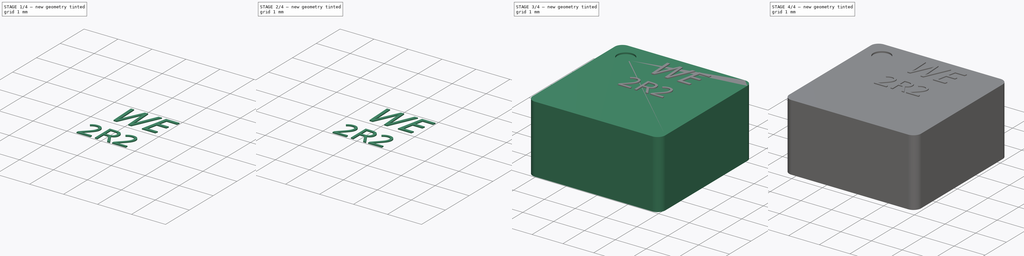
[diagram: build sequence overview — one tinted view per stage of 4, left to right]
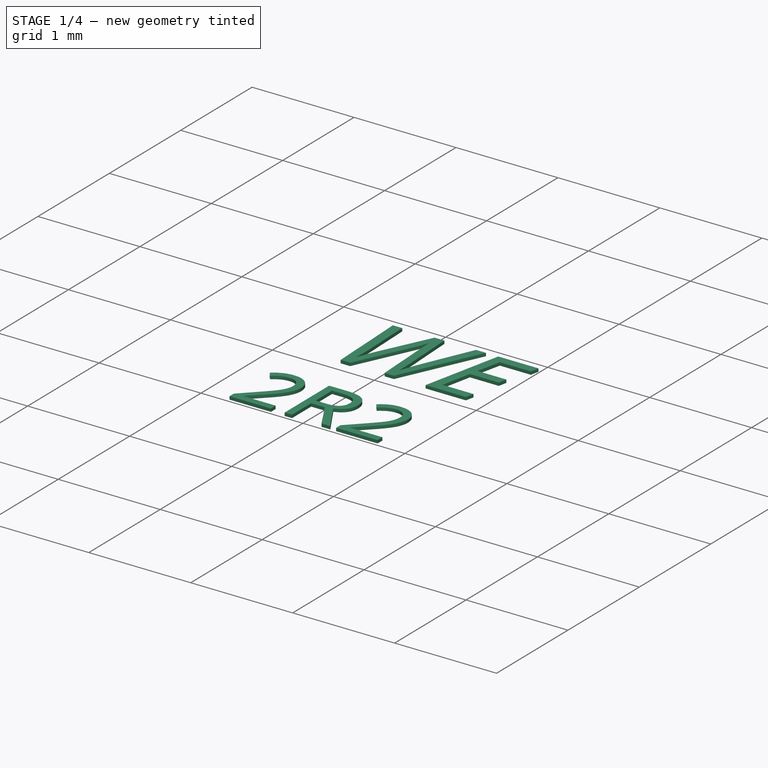
[diagram: stage 1 of 4 — iso view after this stage's code; geometry added in this stage tinted green]
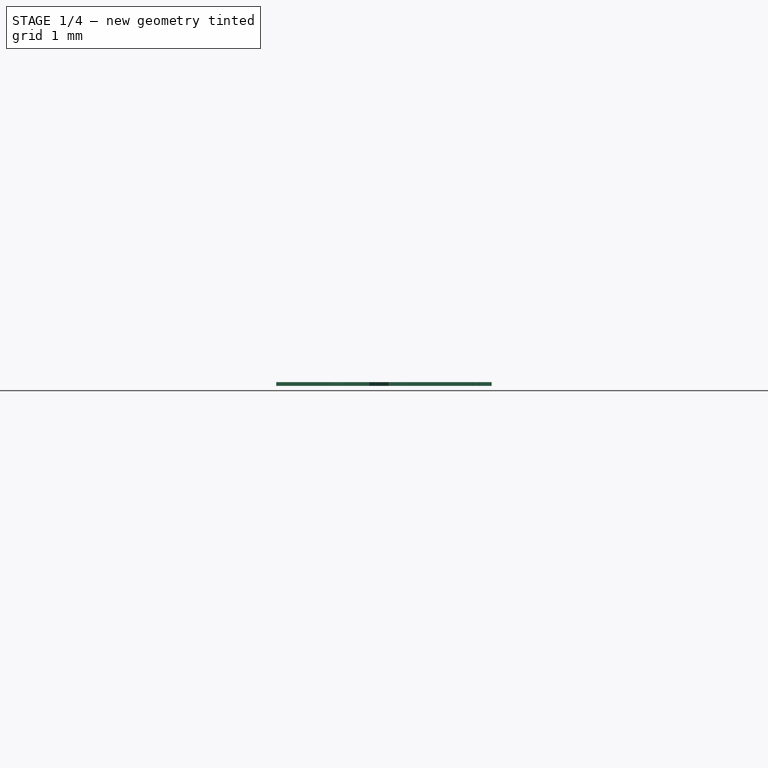
[diagram: stage 1 of 4 — front view after this stage's code; geometry added in this stage tinted green]
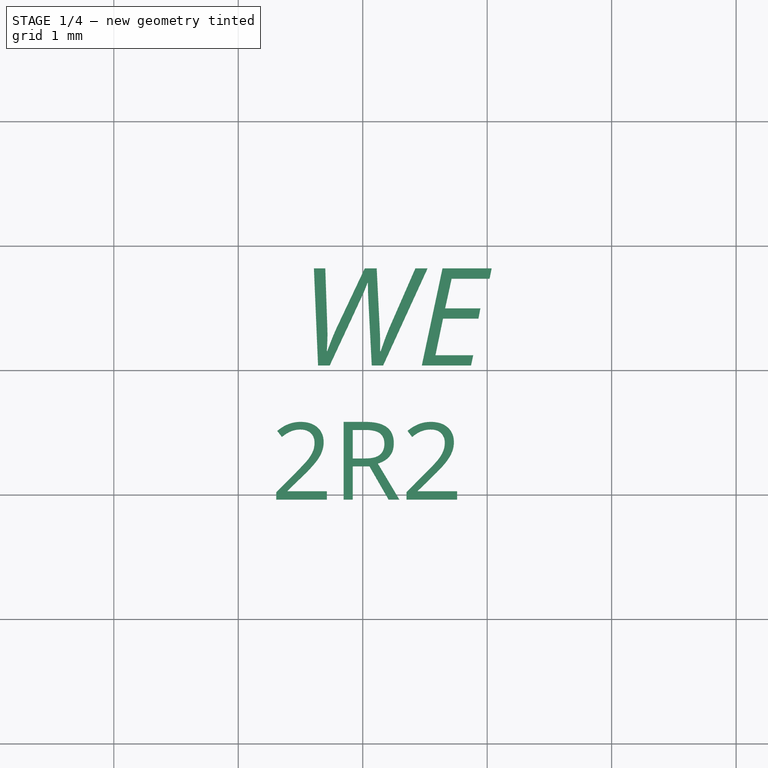
[diagram: stage 1 of 4 — top view after this stage's code; geometry added in this stage tinted green]
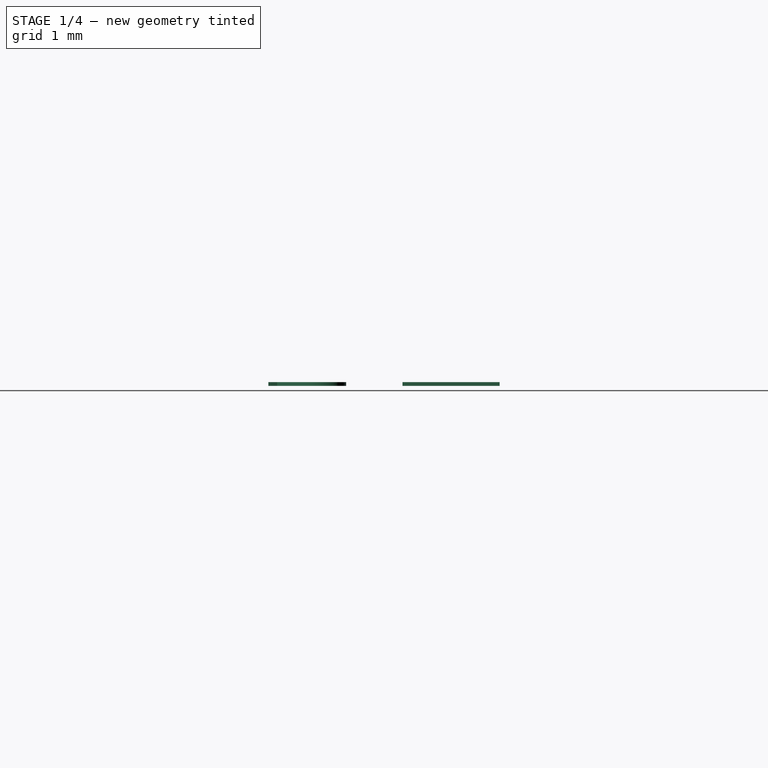
[diagram: stage 1 of 4 — right view after this stage's code; geometry added in this stage tinted green]
FCSTD DOCUMENT  (FreeCAD 0.16R6703 (Git))
Label: L4040
License: All rights reserved
LicenseURL: http://en.wikipedia.org/wiki/All_rights_reserved
objects: Sketcher::SketchObject×3, Part::FeaturePython×3, PartDesign::Pad×2, Part::Part2DObjectPython×2, Part::Extrusion×2, PartDesign::Pocket×1, Part::MultiFuse×1, App::DocumentObjectGroup×1
note: 17 computed .brp shape members not serialized (recipe doc carries the construction recipe); baked Part::Feature solids carry a one-line shape summary decoded from their .brp

FEATURE [Part::Part2DObjectPython] ShapeString  # Draft 2D object (typed FeaturePython)
  FontFile = <userpath>/develop/icezum/src-kicad/packages3d/develop/Open_Sans/OpenSans-Italic.ttf
  Placement = pos=(-0.99574,0.19247,3.1) rot=(0,0,1;0rad)
  Size = 1
  String = WE
  Tracking = 0
FEATURE [Part::Extrusion] Extrude  label="Text-1"
  Base = -> ShapeString
  Dir = (0,0,0.03)
  Placement = pos=(0.483215,0.848093,0) rot=(0,0,1;0rad)
  Solid = true
FEATURE [Part::Part2DObjectPython] ShapeString001  # Draft 2D object (typed FeaturePython)
  FontFile = <userpath>/develop/icezum/src-kicad/packages3d/develop/Open_Sans/OpenSans-Regular.ttf
  Placement = pos=(-0.979148,-0.0208523,3.1) rot=(0,0,1;0rad)
  Size = 0.8
  String = 2R2
  Tracking = 0
FEATURE [Part::Extrusion] Extrude001  label="Text-2"
  Base = -> ShapeString001
  Dir = (0,0,0.03)
  Placement = pos=(0.242218,-0.0161481,0) rot=(0,0,1;0rad)
  Solid = true
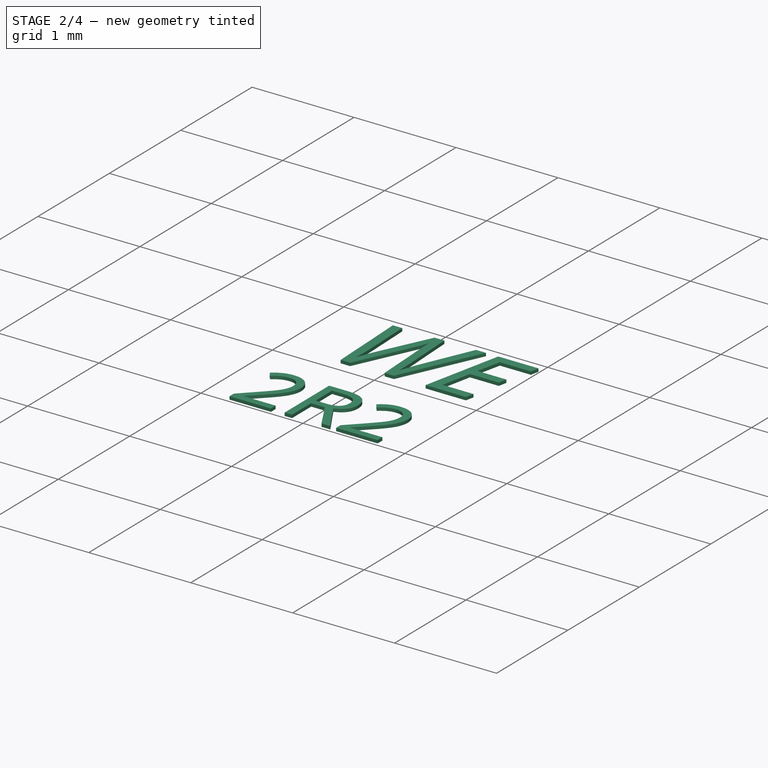
[diagram: stage 2 of 4 — iso view after this stage's code; geometry added in this stage tinted green]
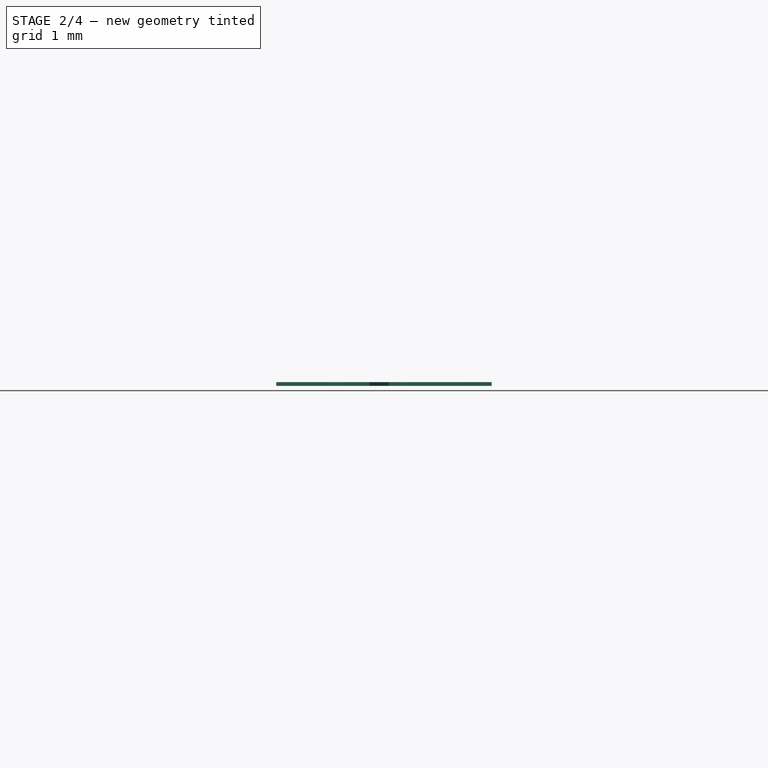
[diagram: stage 2 of 4 — front view after this stage's code; geometry added in this stage tinted green]
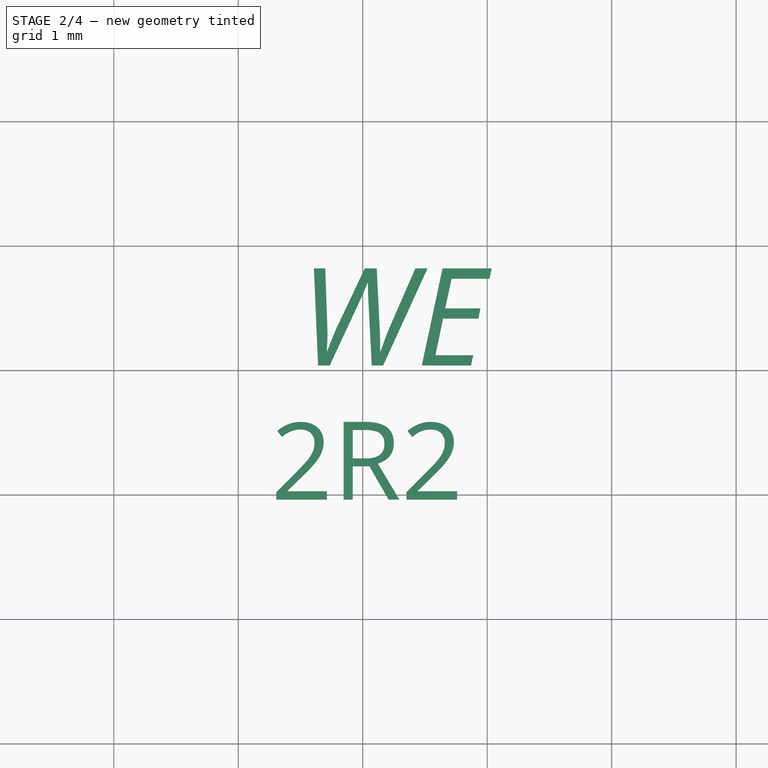
[diagram: stage 2 of 4 — top view after this stage's code; geometry added in this stage tinted green]
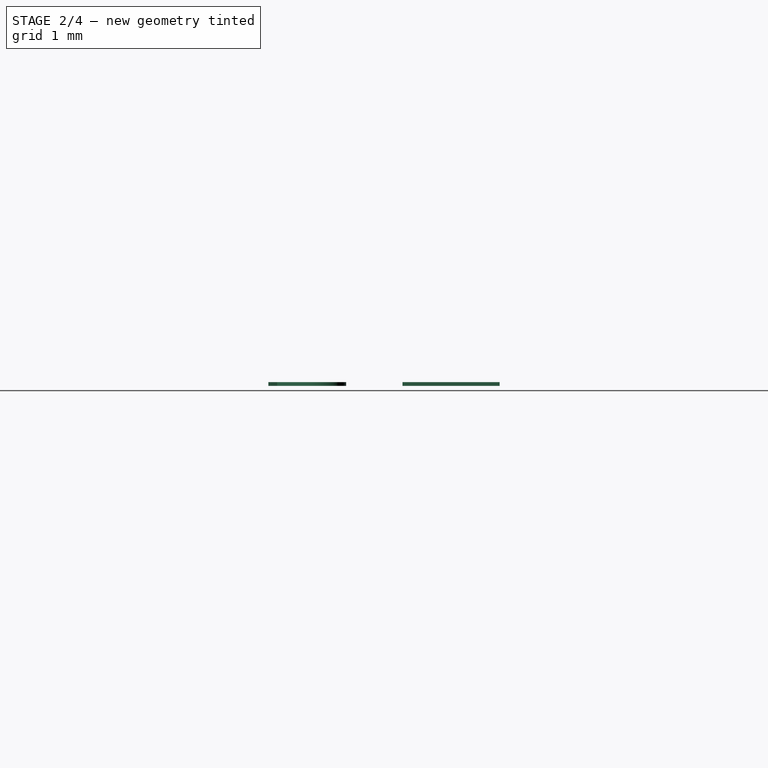
[diagram: stage 2 of 4 — right view after this stage's code; geometry added in this stage tinted green]
FEATURE [Part::MultiFuse] Fusion  label="Text-src"
  Shapes = -> [Extrude,Extrude001]
FEATURE [Part::FeaturePython] Clone002  label="Text"  # Draft clone (typed FeaturePython)
  Objects = -> [Fusion]
  Placement = pos=(0,0,-0.8) rot=(0,0,1;0rad)
  Scale = (1,1,1)
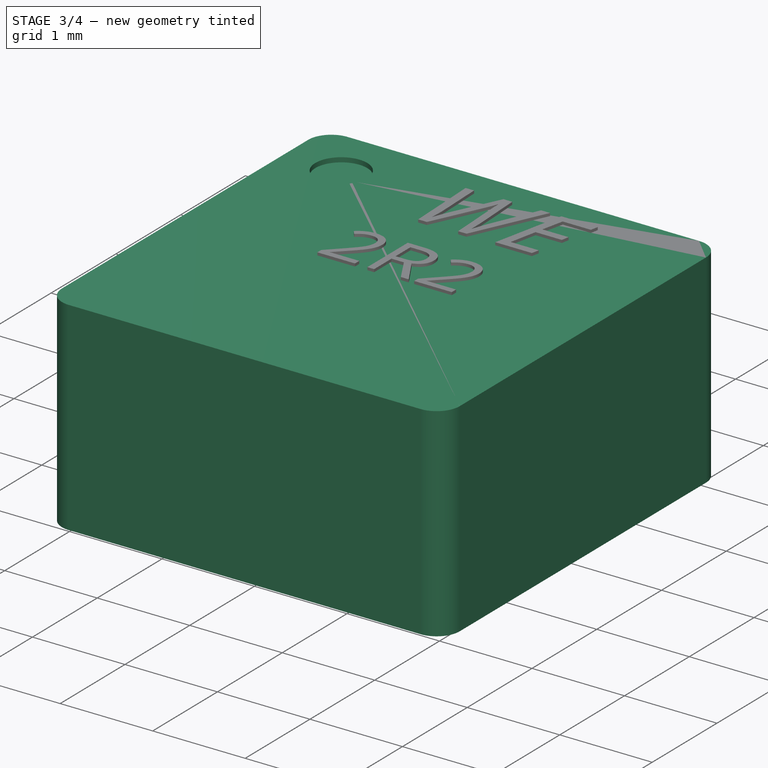
[diagram: stage 3 of 4 — iso view after this stage's code; geometry added in this stage tinted green]
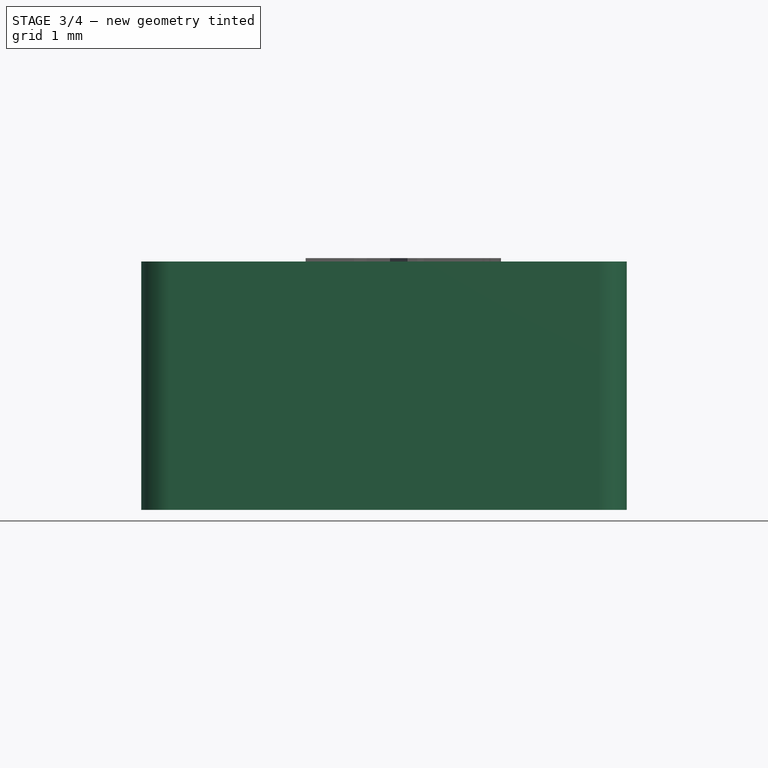
[diagram: stage 3 of 4 — front view after this stage's code; geometry added in this stage tinted green]
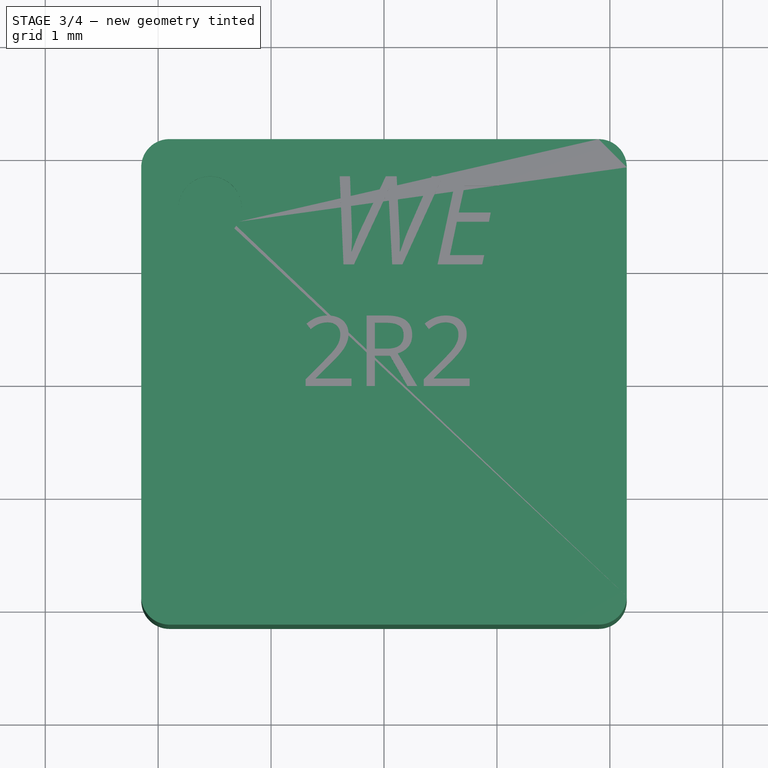
[diagram: stage 3 of 4 — top view after this stage's code; geometry added in this stage tinted green]
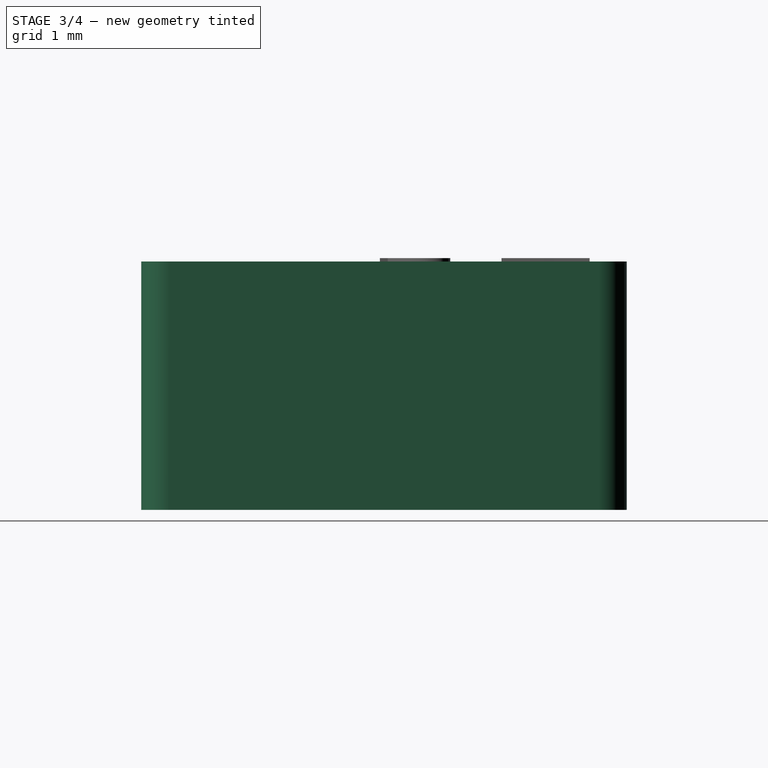
[diagram: stage 3 of 4 — right view after this stage's code; geometry added in this stage tinted green]
FEATURE [Sketcher::SketchObject] Sketch  label="body-sketch"
  Placement = pos=(1.56732e-07,-2.2571e-08,0.0999997) rot=(0,0,1;0rad)
  sketch-geometry (8):
    g0: LineSegment StartX=-1.9 StartY=2.15 StartZ=0 EndX=1.9 EndY=2.15 EndZ=0
    g1: LineSegment StartX=2.15 StartY=1.9 StartZ=0 EndX=2.15 EndY=-1.9 EndZ=0
    g2: LineSegment StartX=1.9 StartY=-2.15 StartZ=0 EndX=-1.9 EndY=-2.15 EndZ=0
    g3: LineSegment StartX=-2.15 StartY=-1.9 StartZ=0 EndX=-2.15 EndY=1.9 EndZ=0
    g4: ArcOfCircle CenterX=-1.9 CenterY=1.9 CenterZ=0 NormalX=0 NormalY=0 NormalZ=1 Radius=0.25 StartAngle=1.5708 EndAngle=3.14159
    g5: ArcOfCircle CenterX=1.9 CenterY=1.9 CenterZ=0 NormalX=0 NormalY=0 NormalZ=1 Radius=0.25 StartAngle=0 EndAngle=1.5708
    g6: ArcOfCircle CenterX=1.9 CenterY=-1.9 CenterZ=0 NormalX=0 NormalY=0 NormalZ=1 Radius=0.25 StartAngle=4.71239 EndAngle=6.28319
    g7: ArcOfCircle CenterX=-1.9 CenterY=-1.9 CenterZ=0 NormalX=0 NormalY=0 NormalZ=1 Radius=0.25 StartAngle=3.14159 EndAngle=4.71239
  constraints (18):
    c: Horizontal(g0)
    c: Horizontal(g2)
    c: Vertical(g1)
    c: Vertical(g3)
    c: Tangent(g0,g4) = 1.5708
    c: Tangent(g3,g4) = 1.5708
    c: Tangent(g0,g5) = 1.5708
    c: Tangent(g1,g5) = 1.5708
    c: Tangent(g1,g6) = 1.5708
    c: Tangent(g2,g6) = 1.5708
    c: Tangent(g2,g7) = 1.5708
    c: Tangent(g3,g7) = 1.5708
    c: DistanceY(g2,g0) = 4.3
    c: DistanceX(g3,g1) = 4.3
    c: Symmetric(g4,g6,g-1)
    c: Symmetric(g7,g5,g-1)
    c: Equal(g4,g5)
    c: Radius(g5) = 0.25
FEATURE [PartDesign::Pad] Pad  label="body-src-1"
  Length = 2.2
  Length2 = 100
  Placement = pos=(1.56732e-07,-2.2571e-08,0.0999997) rot=(0,0,1;0rad)
  Sketch = -> Sketch
  Type = 0
FEATURE [Sketcher::SketchObject] Sketch002  label="mark-sketch"
  Placement = pos=(1.56732e-07,-2.2571e-08,2.3) rot=(0,0,1;0rad)
  Support = -> Pad [Face10]
  sketch-geometry (1):
    g0: Circle CenterX=-1.54 CenterY=1.54 CenterZ=0 NormalX=0 NormalY=0 NormalZ=1 Radius=0.28
  constraints (3):
    c: DistanceY(g-1,g0) = 1.54
    c: DistanceX(g0,g-1) = 1.54
    c: Radius(g0) = 0.28
FEATURE [PartDesign::Pocket] Pocket  label="body-mark"
  Length = 0.05
  Placement = pos=(1.56732e-07,-2.2571e-08,0.0999997) rot=(0,0,1;0rad)
  Sketch = -> Sketch002
  Type = 0
FEATURE [Part::FeaturePython] Clone001  label="body"  # Draft clone (typed FeaturePython)
  Objects = -> [Pocket]
  Placement = pos=(1.56732e-07,-2.2571e-08,0.0999997) rot=(0,0,1;0rad)
  Scale = (1,1,1)
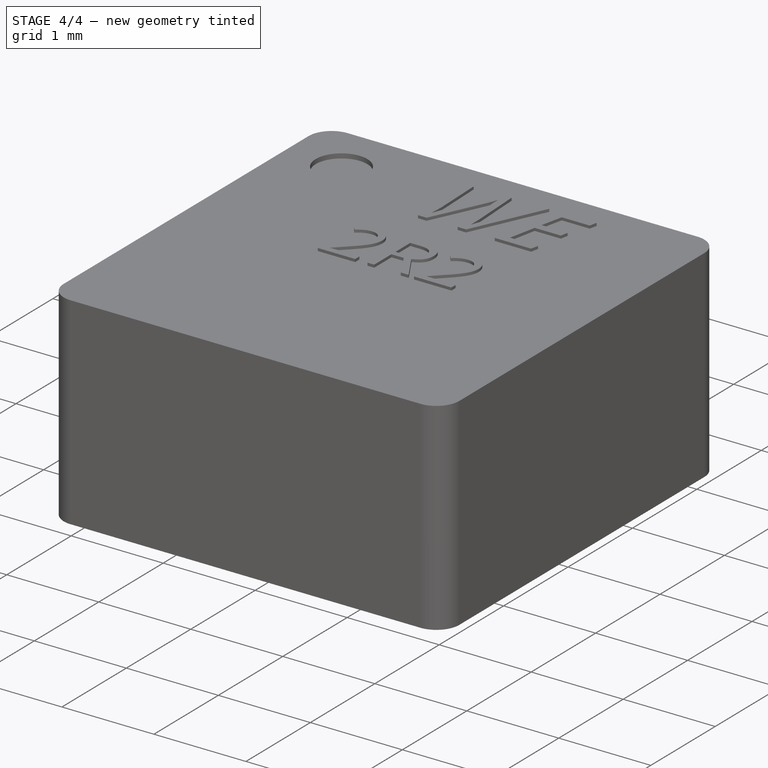
[diagram: stage 4 of 4 — iso view after this stage's code; geometry added in this stage tinted green]
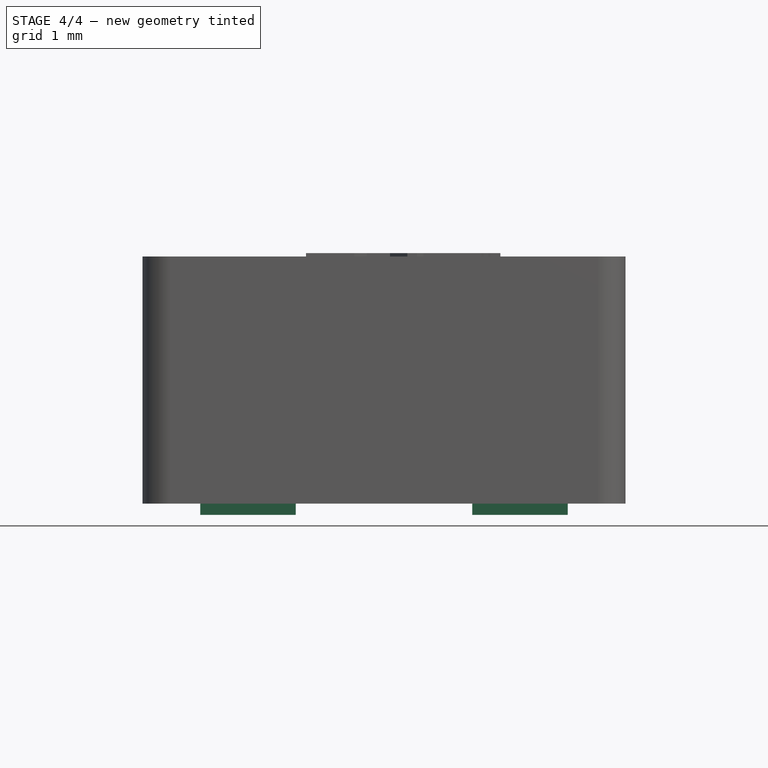
[diagram: stage 4 of 4 — front view after this stage's code; geometry added in this stage tinted green]
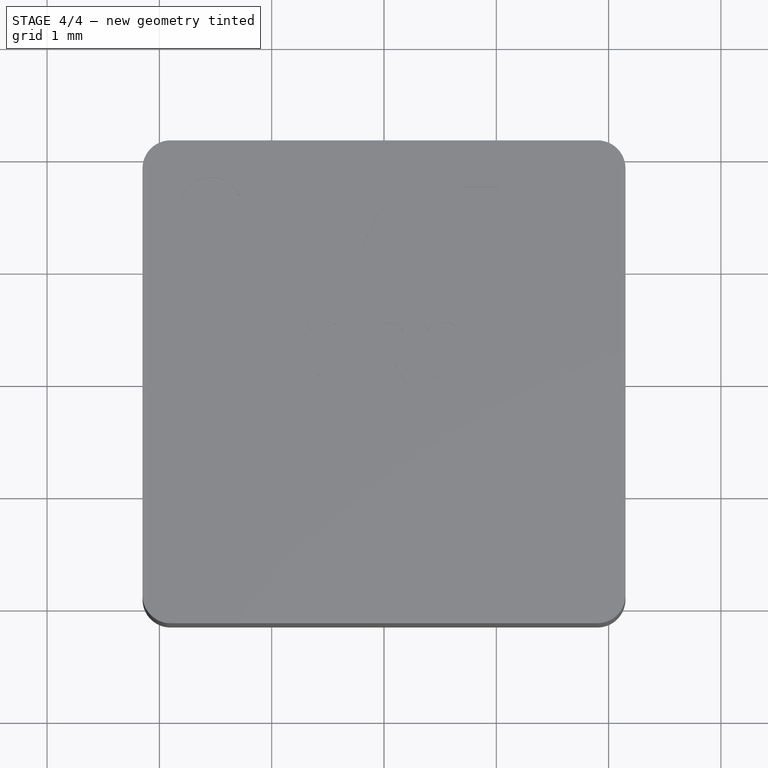
[diagram: stage 4 of 4 — top view after this stage's code; geometry added in this stage tinted green]
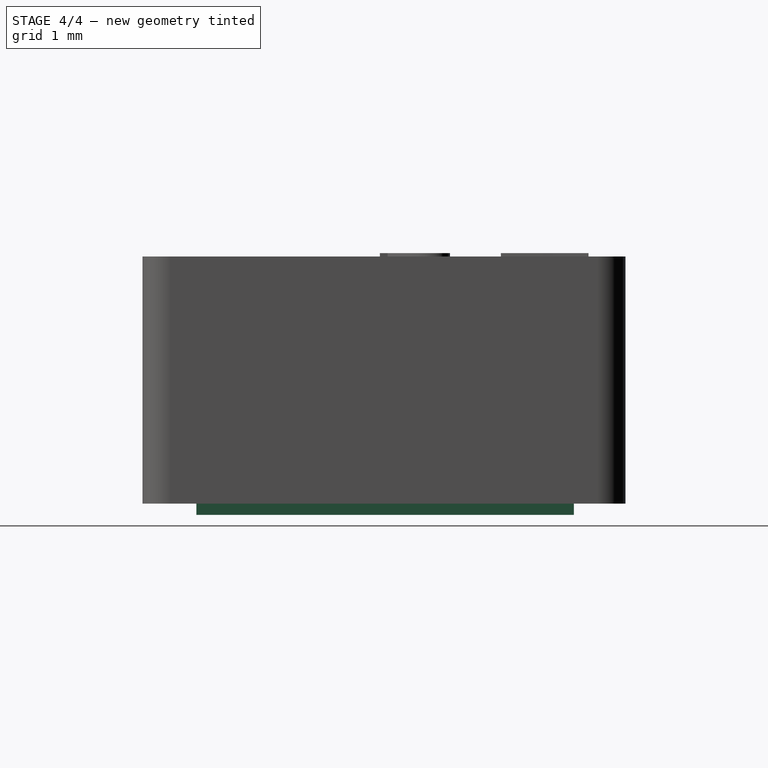
[diagram: stage 4 of 4 — right view after this stage's code; geometry added in this stage tinted green]
FEATURE [Sketcher::SketchObject] Sketch001  label="pads-sketch"
  sketch-geometry (8):
    g0: LineSegment StartX=-1.67 StartY=1.636 StartZ=0 EndX=1.69 EndY=1.636 EndZ=0
    g1: LineSegment StartX=1.69 StartY=1.636 StartZ=0 EndX=1.69 EndY=0.786 EndZ=0
    g2: LineSegment StartX=1.69 StartY=0.786 StartZ=0 EndX=-1.67 EndY=0.786 EndZ=0
    g3: LineSegment StartX=-1.67 StartY=0.786 StartZ=0 EndX=-1.67 EndY=1.636 EndZ=0
    g4: LineSegment StartX=-1.67 StartY=-0.786 StartZ=0 EndX=1.69 EndY=-0.786 EndZ=0
    g5: LineSegment StartX=1.69 StartY=-0.786 StartZ=0 EndX=1.69 EndY=-1.636 EndZ=0
    g6: LineSegment StartX=1.69 StartY=-1.636 StartZ=0 EndX=-1.67 EndY=-1.636 EndZ=0
    g7: LineSegment StartX=-1.67 StartY=-1.636 StartZ=0 EndX=-1.67 EndY=-0.786 EndZ=0
  constraints (22):
    c: Coincident(g0,g1)
    c: Coincident(g1,g2)
    c: Coincident(g2,g3)
    c: Coincident(g3,g0)
    c: Horizontal(g0)
    c: Horizontal(g2)
    c: Vertical(g1)
    c: Vertical(g3)
    c: Coincident(g4,g5)
    c: Coincident(g5,g6)
    c: Coincident(g6,g7)
    c: Coincident(g7,g4)
    c: Horizontal(g4)
    c: Horizontal(g6)
    c: Vertical(g5)
    c: Vertical(g7)
    c: DistanceX(g0,g0) = 3.36
    c: DistanceY(g1,g1) = 0.85
    c: DistanceY(g-1,g2) = 0.786
    c: DistanceX(g2,g-1) = 1.67
    c: Symmetric(g2,g4,g-1)
    c: Symmetric(g5,g0,g-1)
FEATURE [PartDesign::Pad] Pad001  label="pads-src"
  Length = 0.1
  Length2 = 100
  Sketch = -> Sketch001
  Type = 0
FEATURE [App::DocumentObjectGroup] Group  label="src"
  Group = -> [Pad,Pad001,Pocket,Fusion]
FEATURE [Part::FeaturePython] Clone  label="pads"  # Draft clone (typed FeaturePython)
  Objects = -> [Pad001]
  Placement = pos=(0,0,0) rot=(0,0,1;1.5708rad)
  Scale = (1,1,1)
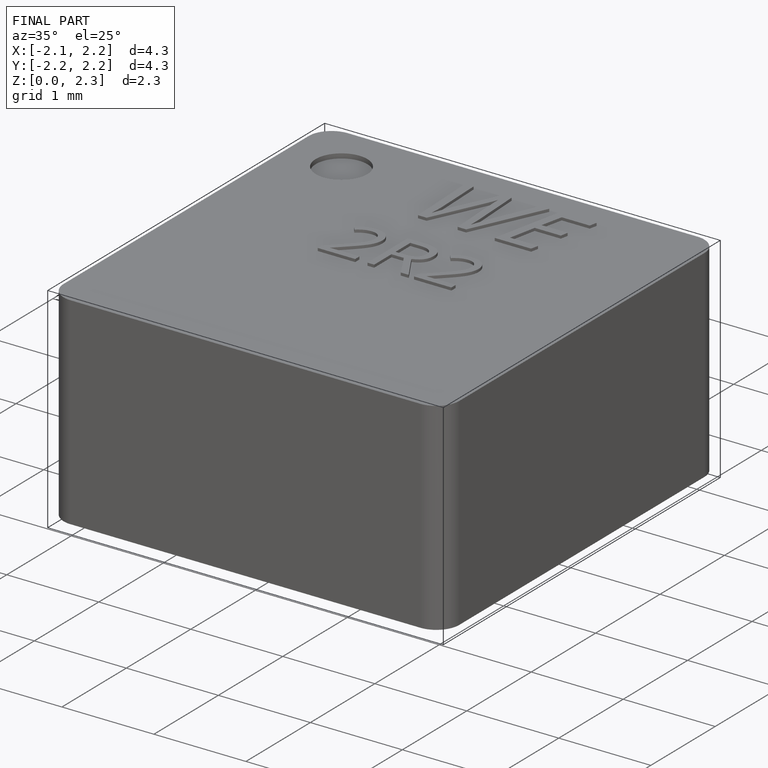
[diagram: finished part — iso view with bounding-box wireframe]
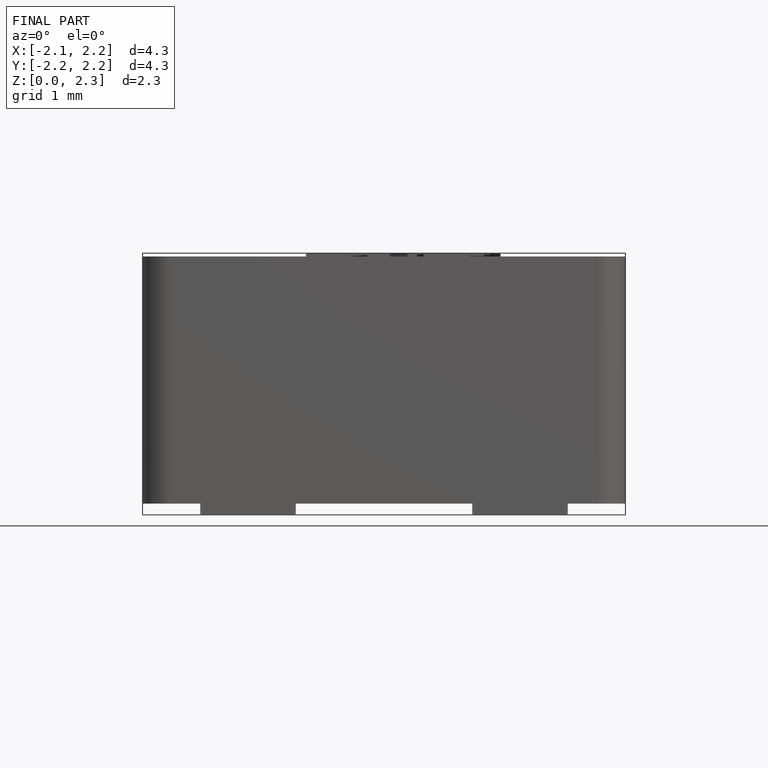
[diagram: finished part — front view with bounding-box wireframe]
